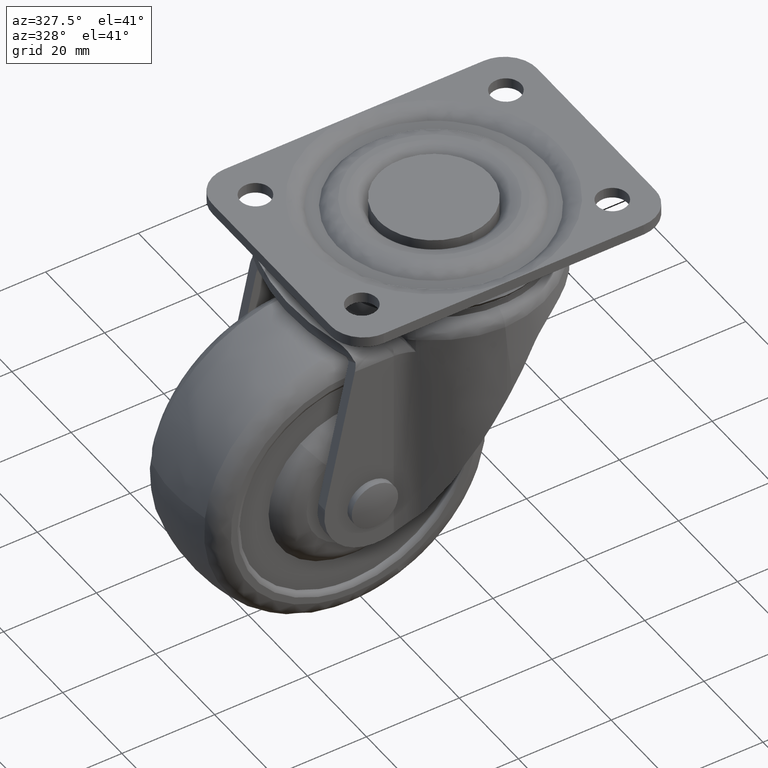
[diagram: clean part render]
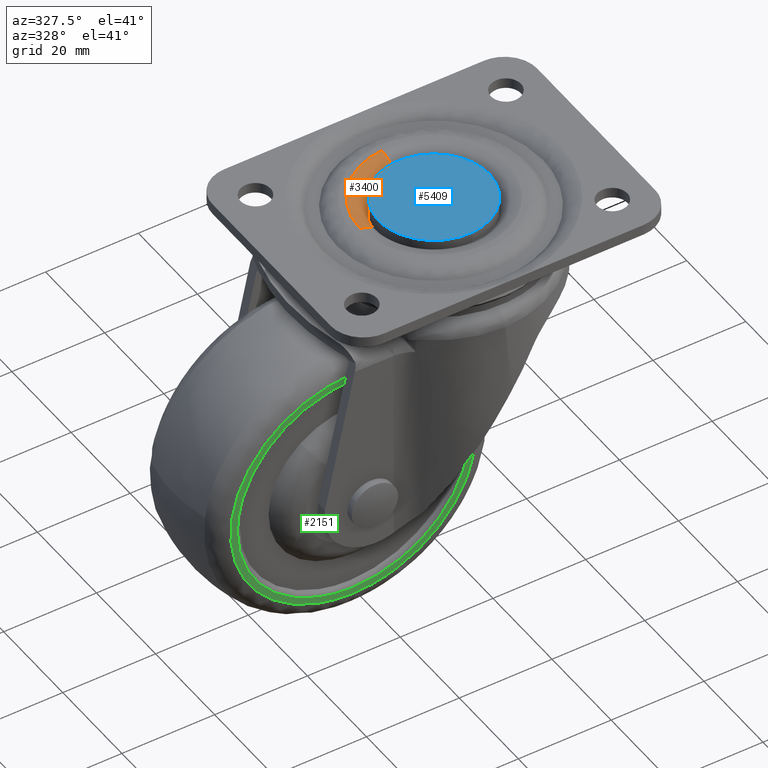
[diagram: same view with three faces highlighted in distinct colors, each labeled with its STEP entity id]
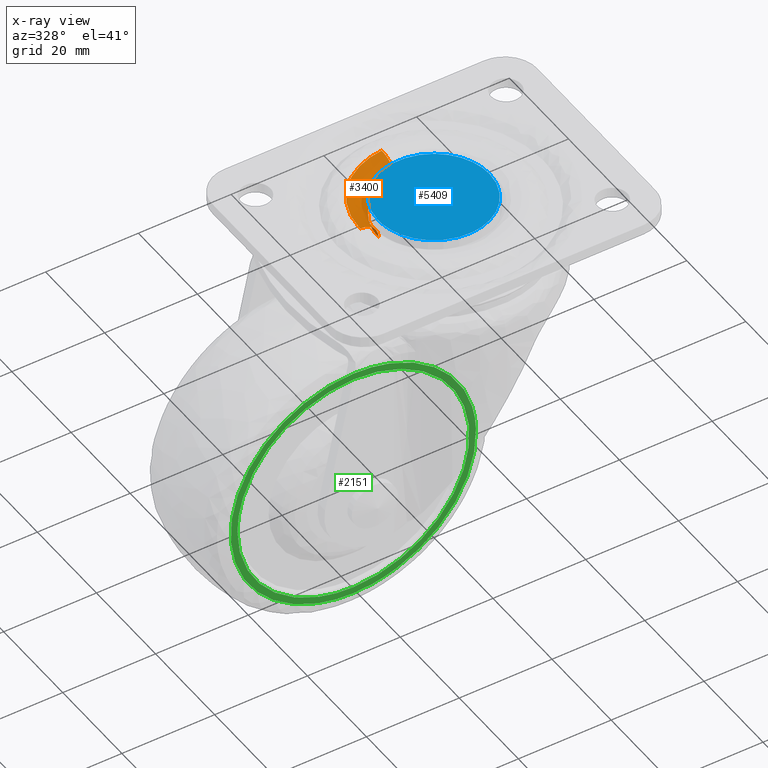
[diagram: x-ray of the same camera — body ghosted, the three highlighted faces saturated]
A machine part, auxiliary view with three faces highlighted in distinct colors.
The next image is the same camera in x-ray (body ghosted, the three faces saturated) — at least one of them is partly hidden behind the body in this view.
Their STEP definitions:

[orange] entity #3400 — the highlighted face is a freeform B-spline surface patch.
#2308=CARTESIAN_POINT('',(-0.836799018967200,11.970788086080860,-3.999999999746462));
#2309=VERTEX_POINT('',#2308);
#2325=CARTESIAN_POINT('',(-12.0,0.0,-4.0));
#2326=VERTEX_POINT('',#2325);
#2327=CARTESIAN_POINT('',(-0.836799018967200,11.970788086080862,-3.999999999746462));
#2328=CARTESIAN_POINT('',(-12.0,11.190442167083436,-4.000000000000001));
#2329=CARTESIAN_POINT('',(-12.0,0.0,-4.0));
#2337=(BOUNDED_CURVE()B_SPLINE_CURVE(2,(#2327,#2328,#2329),.UNSPECIFIED.,.F.,.U.)B_SPLINE_CURVE_WITH_KNOTS((3,3),(0.762166313466644,1.0),.UNSPECIFIED.)CURVE()GEOMETRIC_REPRESENTATION_ITEM()RATIONAL_B_SPLINE_CURVE((0.972879876383305,0.721360504035903,1.0))REPRESENTATION_ITEM(''));
#2338=EDGE_CURVE('',#2309,#2326,#2337,.T.);
#2340=CARTESIAN_POINT('',(-11.999052530445759,-0.150792478603142,-3.999999999752810));
#2341=VERTEX_POINT('',#2340);
#2342=CARTESIAN_POINT('',(-12.0,0.0,-4.0));
#2343=CARTESIAN_POINT('',(-12.0,-0.075399215905589,-4.0));
#2344=CARTESIAN_POINT('',(-11.999052530445756,-0.150792478603142,-3.999999999752810));
#2352=(BOUNDED_CURVE()B_SPLINE_CURVE(2,(#2342,#2343,#2344),.UNSPECIFIED.,.F.,.U.)B_SPLINE_CURVE_WITH_KNOTS((3,3),(0.0,0.002215704078357),.UNSPECIFIED.)CURVE()GEOMETRIC_REPRESENTATION_ITEM()RATIONAL_B_SPLINE_CURVE((1.0,0.997404141202208,0.994854295643816))REPRESENTATION_ITEM(''));
#2353=EDGE_CURVE('',#2326,#2341,#2352,.T.);
#3284=CARTESIAN_POINT('',(-15.998736706702720,-0.201056638385162,-6.912640E-016));
#3285=VERTEX_POINT('',#3284);
#3286=CARTESIAN_POINT('',(-11.999052530445752,-0.150792478603143,-3.999999999752809));
#3287=CARTESIAN_POINT('',(-11.999052530940128,-0.150792478606444,-1.110270E-009));
#3288=CARTESIAN_POINT('',(-15.998736706702719,-0.201056638385162,-6.912640E-016));
#3296=(BOUNDED_CURVE()B_SPLINE_CURVE(2,(#3286,#3287,#3288),.UNSPECIFIED.,.F.,.U.)B_SPLINE_CURVE_WITH_KNOTS((3,3),(-1.725134643155069,-0.274865357002829),.UNSPECIFIED.)CURVE()GEOMETRIC_REPRESENTATION_ITEM()RATIONAL_B_SPLINE_CURVE((0.883342149607837,0.624617224200971,0.883342149551500))REPRESENTATION_ITEM(''));
#3297=EDGE_CURVE('',#2341,#3285,#3296,.T.);
#3316=CARTESIAN_POINT('',(-1.115732025417574,15.961050780745641,-6.428830E-016));
#3317=VERTEX_POINT('',#3316);
#3333=CARTESIAN_POINT('',(-0.836799018967200,11.970788086080859,-3.999999999746462));
#3334=CARTESIAN_POINT('',(-0.836799018940666,11.970788086591030,-1.369770E-009));
#3335=CARTESIAN_POINT('',(-1.115732025417574,15.961050780745641,-6.428830E-016));
#3343=(BOUNDED_CURVE()B_SPLINE_CURVE(2,(#3333,#3334,#3335),.UNSPECIFIED.,.F.,.U.)B_SPLINE_CURVE_WITH_KNOTS((3,3),(-1.725134643151813,-0.274865357069358),.UNSPECIFIED.)CURVE()GEOMETRIC_REPRESENTATION_ITEM()RATIONAL_B_SPLINE_CURVE((0.863472075327362,0.610566959945169,0.863472075250224))REPRESENTATION_ITEM(''));
#3344=EDGE_CURVE('',#2309,#3317,#3343,.T.);
#3349=CARTESIAN_POINT('',(-12.008734305550577,-0.150914149778985,-4.278148458932040));
#3350=CARTESIAN_POINT('',(-12.151250602024069,11.189575400522168,-4.278148458932042));
#3351=CARTESIAN_POINT('',(-0.837474213874942,11.980447055223177,-4.278148458932041));
#3352=CARTESIAN_POINT('',(-11.688928379590470,-0.146895138434197,0.310149246515458));
#3353=CARTESIAN_POINT('',(-11.827649308875504,10.891584585585871,0.310149246515458));
#3354=CARTESIAN_POINT('',(-0.815171345843945,11.661394450142149,0.310149246515458));
#3355=CARTESIAN_POINT('',(-16.276863767254511,-0.204551869830961,-0.009682578809705));
#3356=CARTESIAN_POINT('',(-16.470033029167514,15.166560419572143,-0.009682578809705));
#3357=CARTESIAN_POINT('',(-1.135128260896769,16.238522697478597,-0.009682578809705));
#3365=(BOUNDED_SURFACE()B_SPLINE_SURFACE(2,2,((#3349,#3352,#3355),(#3350,#3353,#3356),(#3351,#3354,#3357)),.UNSPECIFIED.,.F.,.F.,.U.)B_SPLINE_SURFACE_WITH_KNOTS((3,3),(3,3),(0.0,25.884593814193749),(0.0,7.289496381832427),.UNSPECIFIED.)GEOMETRIC_REPRESENTATION_ITEM()RATIONAL_B_SPLINE_SURFACE(((0.910479797427780,0.597479547113833,0.910479855905840),(0.654473373235867,0.429481747693634,0.654473415271213),(0.889999283492427,0.584039723160217,0.889999340655069)))REPRESENTATION_ITEM('')SURFACE());
#3366=ORIENTED_EDGE('',*,*,#2338,.F.);
#3367=ORIENTED_EDGE('',*,*,#3344,.T.);
#3368=CARTESIAN_POINT('',(-16.0,0.0,0.0));
#3369=VERTEX_POINT('',#3368);
#3370=CARTESIAN_POINT('',(-16.0,0.0,0.0));
#3371=CARTESIAN_POINT('',(-16.000000000000007,14.920589555781888,0.0));
#3372=CARTESIAN_POINT('',(-1.115732025417574,15.961050780745650,-6.428830E-016));
#3380=(BOUNDED_CURVE()B_SPLINE_CURVE(2,(#3370,#3371,#3372),.UNSPECIFIED.,.F.,.U.)B_SPLINE_CURVE_WITH_KNOTS((3,3),(0.0,0.237833686529569),.UNSPECIFIED.)CURVE()GEOMETRIC_REPRESENTATION_ITEM()RATIONAL_B_SPLINE_CURVE((1.0,0.721360504040340,0.972879876375295))REPRESENTATION_ITEM(''));
#3381=EDGE_CURVE('',#3369,#3317,#3380,.T.);
#3382=ORIENTED_EDGE('',*,*,#3381,.F.);
#3383=CARTESIAN_POINT('',(-15.998736706702717,-0.201056638385162,-6.912640E-016));
#3384=CARTESIAN_POINT('',(-16.0,-0.100532288128763,0.0));
#3385=CARTESIAN_POINT('',(-16.0,0.0,0.0));
#3393=(BOUNDED_CURVE()B_SPLINE_CURVE(2,(#3383,#3384,#3385),.UNSPECIFIED.,.F.,.U.)B_SPLINE_CURVE_WITH_KNOTS((3,3),(0.997784295916045,1.0),.UNSPECIFIED.)CURVE()GEOMETRIC_REPRESENTATION_ITEM()RATIONAL_B_SPLINE_CURVE((0.994854295630932,0.997404141195649,1.0))REPRESENTATION_ITEM(''));
#3394=EDGE_CURVE('',#3285,#3369,#3393,.T.);
#3395=ORIENTED_EDGE('',*,*,#3394,.F.);
#3396=ORIENTED_EDGE('',*,*,#3297,.F.);
#3397=ORIENTED_EDGE('',*,*,#2353,.F.);
#3398=EDGE_LOOP('',(#3366,#3367,#3382,#3395,#3396,#3397));
#3399=FACE_OUTER_BOUND('',#3398,.T.);
#3400=ADVANCED_FACE('',(#3399),#3365,.T.);

[blue] entity #5409 — the highlighted face is a freeform B-spline surface patch.
#4589=CARTESIAN_POINT('',(-1.416410815927081,11.916114316358531,5.110971E-016));
#4590=VERTEX_POINT('',#4589);
#4596=CARTESIAN_POINT('',(12.0,0.0,0.0));
#4597=VERTEX_POINT('',#4596);
#4598=CARTESIAN_POINT('',(-1.416410815927081,11.916114316358529,5.110971E-016));
#4599=CARTESIAN_POINT('',(-0.710689435869387,11.999999999999996,0.0));
#4600=CARTESIAN_POINT('',(0.0,12.0,0.0));
#4601=CARTESIAN_POINT('',(12.0,12.0,0.0));
#4602=CARTESIAN_POINT('',(12.0,0.0,0.0));
#4610=(BOUNDED_CURVE()B_SPLINE_CURVE(2,(#4598,#4599,#4600,#4601,#4602),.UNSPECIFIED.,.F.,.U.)B_SPLINE_CURVE_WITH_KNOTS((3,2,3),(0.229562473514340,0.250000000000000,0.500000000000000),.UNSPECIFIED.)CURVE()GEOMETRIC_REPRESENTATION_ITEM()RATIONAL_B_SPLINE_CURVE((0.956026754185329,0.976055948332119,1.0,0.707106781186548,1.0))REPRESENTATION_ITEM(''));
#4611=EDGE_CURVE('',#4590,#4597,#4610,.T.);
#4613=CARTESIAN_POINT('',(0.732568981765444,-11.977618406293150,-3.608225E-016));
#4614=VERTEX_POINT('',#4613);
#4615=CARTESIAN_POINT('',(12.0,0.0,0.0));
#4616=CARTESIAN_POINT('',(12.0,-11.288485542975991,0.0));
#4617=CARTESIAN_POINT('',(0.732568981765444,-11.977618406293145,-3.608225E-016));
#4625=(BOUNDED_CURVE()B_SPLINE_CURVE(2,(#4615,#4616,#4617),.UNSPECIFIED.,.F.,.U.)B_SPLINE_CURVE_WITH_KNOTS((3,3),(0.500000000000000,0.739333156614034),.UNSPECIFIED.)CURVE()GEOMETRIC_REPRESENTATION_ITEM()RATIONAL_B_SPLINE_CURVE((1.0,0.719603765562126,0.976072458249893))REPRESENTATION_ITEM(''));
#4626=EDGE_CURVE('',#4597,#4614,#4625,.T.);
#4700=CARTESIAN_POINT('',(-12.0,0.0,0.0));
#4701=VERTEX_POINT('',#4700);
#4702=CARTESIAN_POINT('',(0.732568981765444,-11.977618406293145,-3.608225E-016));
#4703=CARTESIAN_POINT('',(0.366626394341186,-12.0,0.0));
#4704=CARTESIAN_POINT('',(0.0,-12.0,0.0));
#4705=CARTESIAN_POINT('',(-12.0,-12.0,0.0));
#4706=CARTESIAN_POINT('',(-12.0,0.0,0.0));
#4714=(BOUNDED_CURVE()B_SPLINE_CURVE(2,(#4702,#4703,#4704,#4705,#4706),.UNSPECIFIED.,.F.,.U.)B_SPLINE_CURVE_WITH_KNOTS((3,2,3),(0.739333156614034,0.750000000000000,1.0),.UNSPECIFIED.)CURVE()GEOMETRIC_REPRESENTATION_ITEM()RATIONAL_B_SPLINE_CURVE((0.976072458249893,0.987503015624422,1.0,0.707106781186548,1.0))REPRESENTATION_ITEM(''));
#4715=EDGE_CURVE('',#4614,#4701,#4714,.T.);
#4717=CARTESIAN_POINT('',(-12.0,0.0,0.0));
#4718=CARTESIAN_POINT('',(-12.0,10.658094311333576,0.0));
#4719=CARTESIAN_POINT('',(-1.416410815927081,11.916114316358531,5.110971E-016));
#4727=(BOUNDED_CURVE()B_SPLINE_CURVE(2,(#4717,#4718,#4719),.UNSPECIFIED.,.F.,.U.)B_SPLINE_CURVE_WITH_KNOTS((3,3),(0.0,0.229562473514340),.UNSPECIFIED.)CURVE()GEOMETRIC_REPRESENTATION_ITEM()RATIONAL_B_SPLINE_CURVE((1.0,0.731050832854428,0.956026754185329))REPRESENTATION_ITEM(''));
#4728=EDGE_CURVE('',#4701,#4590,#4727,.T.);
#5398=CARTESIAN_POINT('',(-13.198799953483340,-13.198507884149430,0.0));
#5399=CARTESIAN_POINT('',(13.198800597213509,-13.198507884149430,0.0));
#5400=CARTESIAN_POINT('',(-13.198799953483340,13.198581698541521,0.0));
#5401=CARTESIAN_POINT('',(13.198800597213509,13.198581698541521,0.0));
#5402=B_SPLINE_SURFACE_WITH_KNOTS('',1,1,((#5398,#5400),(#5399,#5401)),.UNSPECIFIED.,.F.,.F.,.U.,(2,2),(2,2),(0.0,26.397600550696851),(0.0,26.397089582690938),.UNSPECIFIED.);
#5403=ORIENTED_EDGE('',*,*,#4715,.F.);
#5404=ORIENTED_EDGE('',*,*,#4626,.F.);
#5405=ORIENTED_EDGE('',*,*,#4611,.F.);
#5406=ORIENTED_EDGE('',*,*,#4728,.F.);
#5407=EDGE_LOOP('',(#5403,#5404,#5405,#5406));
#5408=FACE_OUTER_BOUND('',#5407,.T.);
#5409=ADVANCED_FACE('',(#5408),#5402,.T.);

[green] entity #2151 — the highlighted face is a freeform B-spline surface patch.
#1131=CARTESIAN_POINT('',(0.618984189627840,-12.0,-41.922080862947269));
#1132=VERTEX_POINT('',#1131);
#1146=CARTESIAN_POINT('',(-15.508081549315721,-12.0,-73.188048271220623));
#1147=VERTEX_POINT('',#1146);
#1148=CARTESIAN_POINT('',(-15.508081549315722,-11.999999999999996,-73.188048271220623));
#1149=CARTESIAN_POINT('',(1.449958263743896,-12.0,-66.668140557456766));
#1150=CARTESIAN_POINT('',(1.449958263743896,-12.0,-48.499918000000001));
#1151=CARTESIAN_POINT('',(1.449958263743896,-12.000000000000002,-45.158511212413472));
#1152=CARTESIAN_POINT('',(0.618984189627840,-11.999999999999998,-41.922080862947269));
#1160=(BOUNDED_CURVE()B_SPLINE_CURVE(2,(#1148,#1149,#1150,#1151,#1152),.UNSPECIFIED.,.F.,.U.)B_SPLINE_CURVE_WITH_KNOTS((3,2,3),(0.060939058909384,0.250000000000000,0.292443238245621),.UNSPECIFIED.)CURVE()GEOMETRIC_REPRESENTATION_ITEM()RATIONAL_B_SPLINE_CURVE((0.892016635832689,0.778501329648276,1.0,0.950274653333496,0.917433344550292))REPRESENTATION_ITEM(''));
#1161=EDGE_CURVE('',#1147,#1132,#1160,.T.);
#1230=CARTESIAN_POINT('',(-25.0,-12.0,-74.949876263743903));
#1231=VERTEX_POINT('',#1230);
#1232=CARTESIAN_POINT('',(-25.0,-12.0,-74.949876263743903));
#1233=CARTESIAN_POINT('',(-20.090531264363690,-11.999999999999998,-74.949876263743903));
#1234=CARTESIAN_POINT('',(-15.508081549315724,-11.999999999999998,-73.188048271220623));
#1242=(BOUNDED_CURVE()B_SPLINE_CURVE(2,(#1232,#1233,#1234),.UNSPECIFIED.,.F.,.U.)B_SPLINE_CURVE_WITH_KNOTS((3,3),(0.0,0.060939058909384),.UNSPECIFIED.)CURVE()GEOMETRIC_REPRESENTATION_ITEM()RATIONAL_B_SPLINE_CURVE((1.0,0.928605451538272,0.892016635832689))REPRESENTATION_ITEM(''));
#1243=EDGE_CURVE('',#1231,#1147,#1242,.T.);
#1245=CARTESIAN_POINT('',(-25.0,-12.0,-22.049959736256110));
#1246=VERTEX_POINT('',#1245);
#1247=CARTESIAN_POINT('',(-25.0,-12.0,-22.049959736256110));
#1248=CARTESIAN_POINT('',(-51.449958263743902,-12.0,-22.049959736256106));
#1249=CARTESIAN_POINT('',(-51.449958263743902,-12.0,-48.499918000000001));
#1250=CARTESIAN_POINT('',(-51.449958263743902,-12.0,-74.949876263743889));
#1251=CARTESIAN_POINT('',(-25.0,-12.0,-74.949876263743903));
#1259=(BOUNDED_CURVE()B_SPLINE_CURVE(2,(#1247,#1248,#1249,#1250,#1251),.UNSPECIFIED.,.F.,.U.)B_SPLINE_CURVE_WITH_KNOTS((3,2,3),(0.500000000000000,0.750000000000000,1.0),.UNSPECIFIED.)CURVE()GEOMETRIC_REPRESENTATION_ITEM()RATIONAL_B_SPLINE_CURVE((1.0,0.707106781186548,1.0,0.707106781186548,1.0))REPRESENTATION_ITEM(''));
#1260=EDGE_CURVE('',#1246,#1231,#1259,.T.);
#1262=CARTESIAN_POINT('',(0.618984189627840,-11.999999999999998,-41.922080862947269));
#1263=CARTESIAN_POINT('',(-4.483309307015336,-12.000000000000002,-22.049959736256110));
#1264=CARTESIAN_POINT('',(-25.0,-12.0,-22.049959736256110));
#1272=(BOUNDED_CURVE()B_SPLINE_CURVE(2,(#1262,#1263,#1264),.UNSPECIFIED.,.F.,.U.)B_SPLINE_CURVE_WITH_KNOTS((3,3),(0.292443238245621,0.500000000000000),.UNSPECIFIED.)CURVE()GEOMETRIC_REPRESENTATION_ITEM()RATIONAL_B_SPLINE_CURVE((0.917433344550292,0.756832127853052,1.0))REPRESENTATION_ITEM(''));
#1273=EDGE_CURVE('',#1132,#1246,#1272,.T.);
#1353=CARTESIAN_POINT('',(-0.167308361705794,-12.0,-51.386512186752171));
#1354=VERTEX_POINT('',#1353);
#1355=CARTESIAN_POINT('',(-25.0,-12.0,-23.500018000000001));
#1356=VERTEX_POINT('',#1355);
#1357=CARTESIAN_POINT('',(-0.167308361705794,-11.999999999999995,-51.386512186752171));
#1358=CARTESIAN_POINT('',(-0.000100000000003,-11.999999999999998,-49.948057934881859));
#1359=CARTESIAN_POINT('',(-0.000100000000003,-12.0,-48.499918000000001));
#1360=CARTESIAN_POINT('',(-0.000100000000003,-12.0,-23.500018000000008));
#1361=CARTESIAN_POINT('',(-25.0,-12.0,-23.500018000000001));
#1369=(BOUNDED_CURVE()B_SPLINE_CURVE(2,(#1357,#1358,#1359,#1360,#1361),.UNSPECIFIED.,.F.,.U.)B_SPLINE_CURVE_WITH_KNOTS((3,2,3),(0.229999999999759,0.250000000000000,0.500000000000000),.UNSPECIFIED.)CURVE()GEOMETRIC_REPRESENTATION_ITEM()RATIONAL_B_SPLINE_CURVE((0.956886118190186,0.976568542494642,1.0,0.707106781186547,1.0))REPRESENTATION_ITEM(''));
#1370=EDGE_CURVE('',#1354,#1356,#1369,.T.);
#1372=CARTESIAN_POINT('',(-49.999899999306592,-12.0,-48.499917999999987));
#1373=VERTEX_POINT('',#1372);
#1374=CARTESIAN_POINT('',(-25.0,-12.0,-23.500018000000001));
#1375=CARTESIAN_POINT('',(-49.999899999999876,-12.0,-23.500017999999997));
#1376=CARTESIAN_POINT('',(-49.999899999306592,-12.000000000000005,-48.499917999999987));
#1384=(BOUNDED_CURVE()B_SPLINE_CURVE(2,(#1374,#1375,#1376),.UNSPECIFIED.,.F.,.U.)B_SPLINE_CURVE_WITH_KNOTS((3,3),(0.500000000000000,0.749999999999999),.UNSPECIFIED.)CURVE()GEOMETRIC_REPRESENTATION_ITEM()RATIONAL_B_SPLINE_CURVE((1.0,0.707106781186548,0.999999999999998))REPRESENTATION_ITEM(''));
#1385=EDGE_CURVE('',#1356,#1373,#1384,.T.);
#1473=CARTESIAN_POINT('',(-25.0,-12.0,-73.499817999999991));
#1474=VERTEX_POINT('',#1473);
#1475=CARTESIAN_POINT('',(-25.0,-12.0,-73.499817999999991));
#1476=CARTESIAN_POINT('',(-2.737796528528385,-12.0,-73.499817999999991));
#1477=CARTESIAN_POINT('',(-0.167308361705794,-11.999999999999996,-51.386512186752178));
#1485=(BOUNDED_CURVE()B_SPLINE_CURVE(2,(#1475,#1476,#1477),.UNSPECIFIED.,.F.,.U.)B_SPLINE_CURVE_WITH_KNOTS((3,3),(0.0,0.229999999999759),.UNSPECIFIED.)CURVE()GEOMETRIC_REPRESENTATION_ITEM()RATIONAL_B_SPLINE_CURVE((1.0,0.730538238691906,0.956886118190186))REPRESENTATION_ITEM(''));
#1486=EDGE_CURVE('',#1474,#1354,#1485,.T.);
#1518=CARTESIAN_POINT('',(-49.999899999306585,-12.000000000000004,-48.499917999999994));
#1519=CARTESIAN_POINT('',(-49.999899999999982,-12.0,-73.499818000000005));
#1520=CARTESIAN_POINT('',(-25.0,-12.0,-73.499817999999991));
#1528=(BOUNDED_CURVE()B_SPLINE_CURVE(2,(#1518,#1519,#1520),.UNSPECIFIED.,.F.,.U.)B_SPLINE_CURVE_WITH_KNOTS((3,3),(0.750000000000000,1.0),.UNSPECIFIED.)CURVE()GEOMETRIC_REPRESENTATION_ITEM()RATIONAL_B_SPLINE_CURVE((1.000000000000000,0.707106781186548,1.0))REPRESENTATION_ITEM(''));
#1529=EDGE_CURVE('',#1373,#1474,#1528,.T.);
#2134=CARTESIAN_POINT('',(-54.092258023525659,-12.0,-19.407608204060921));
#2135=CARTESIAN_POINT('',(-54.092258023525659,-12.0,-77.592224485204326));
#2136=CARTESIAN_POINT('',(4.091228644570697,-12.0,-19.407608204060921));
#2137=CARTESIAN_POINT('',(4.091228644570697,-12.0,-77.592224485204326));
#2138=B_SPLINE_SURFACE_WITH_KNOTS('',1,1,((#2134,#2136),(#2135,#2137)),.UNSPECIFIED.,.F.,.F.,.U.,(2,2),(2,2),(0.0,58.184616281143413),(0.0,58.183486668096357),.UNSPECIFIED.);
#2139=ORIENTED_EDGE('',*,*,#1243,.T.);
#2140=ORIENTED_EDGE('',*,*,#1161,.T.);
#2141=ORIENTED_EDGE('',*,*,#1273,.T.);
#2142=ORIENTED_EDGE('',*,*,#1260,.T.);
#2143=EDGE_LOOP('',(#2139,#2140,#2141,#2142));
#2144=FACE_OUTER_BOUND('',#2143,.T.);
#2145=ORIENTED_EDGE('',*,*,#1385,.F.);
#2146=ORIENTED_EDGE('',*,*,#1370,.F.);
#2147=ORIENTED_EDGE('',*,*,#1486,.F.);
#2148=ORIENTED_EDGE('',*,*,#1529,.F.);
#2149=EDGE_LOOP('',(#2145,#2146,#2147,#2148));
#2150=FACE_BOUND('',#2149,.T.);
#2151=ADVANCED_FACE('',(#2144,#2150),#2138,.T.);